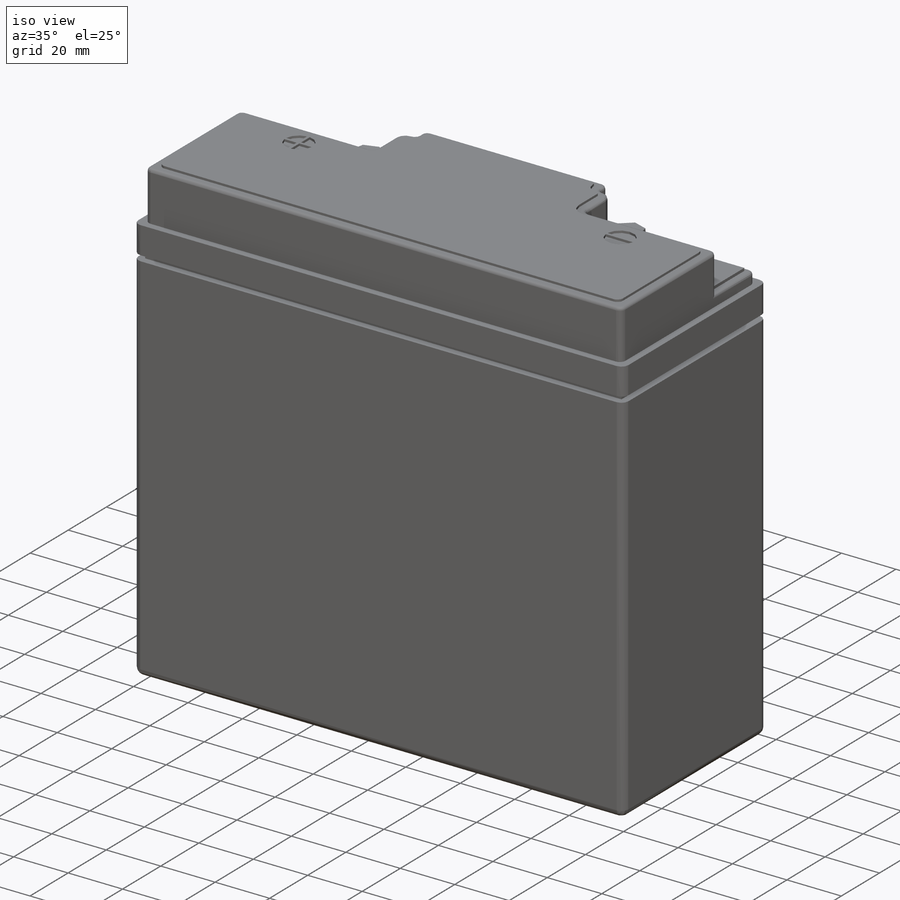
[diagram: iso view]
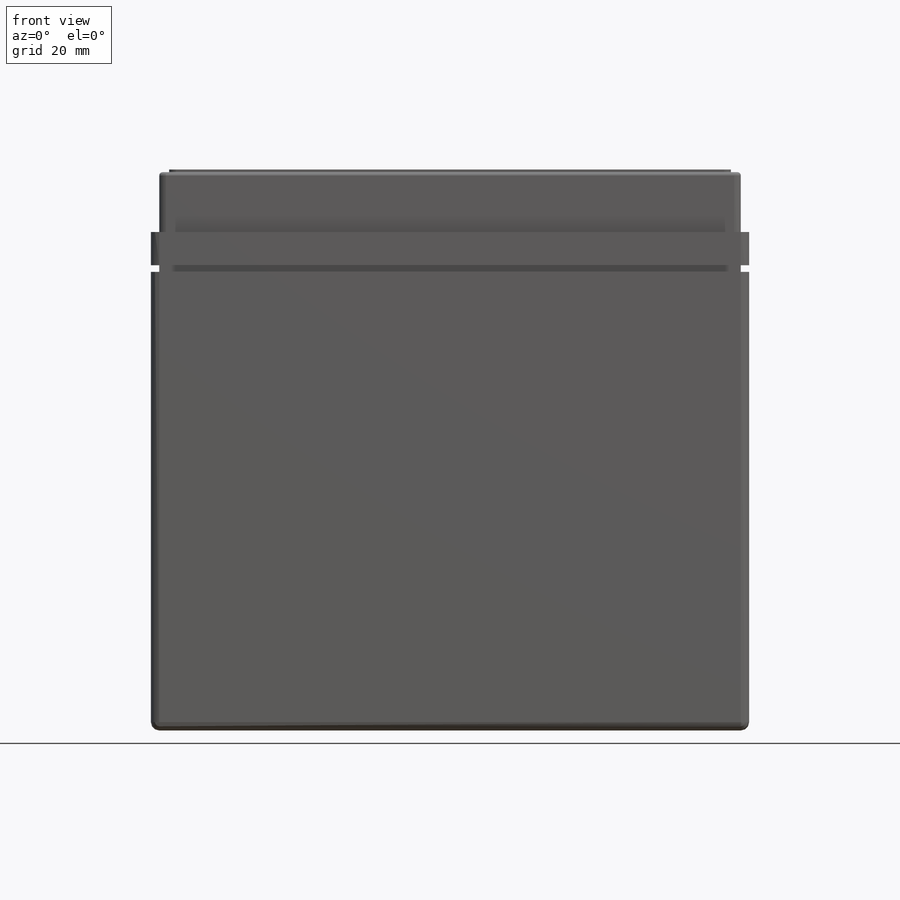
[diagram: front view]
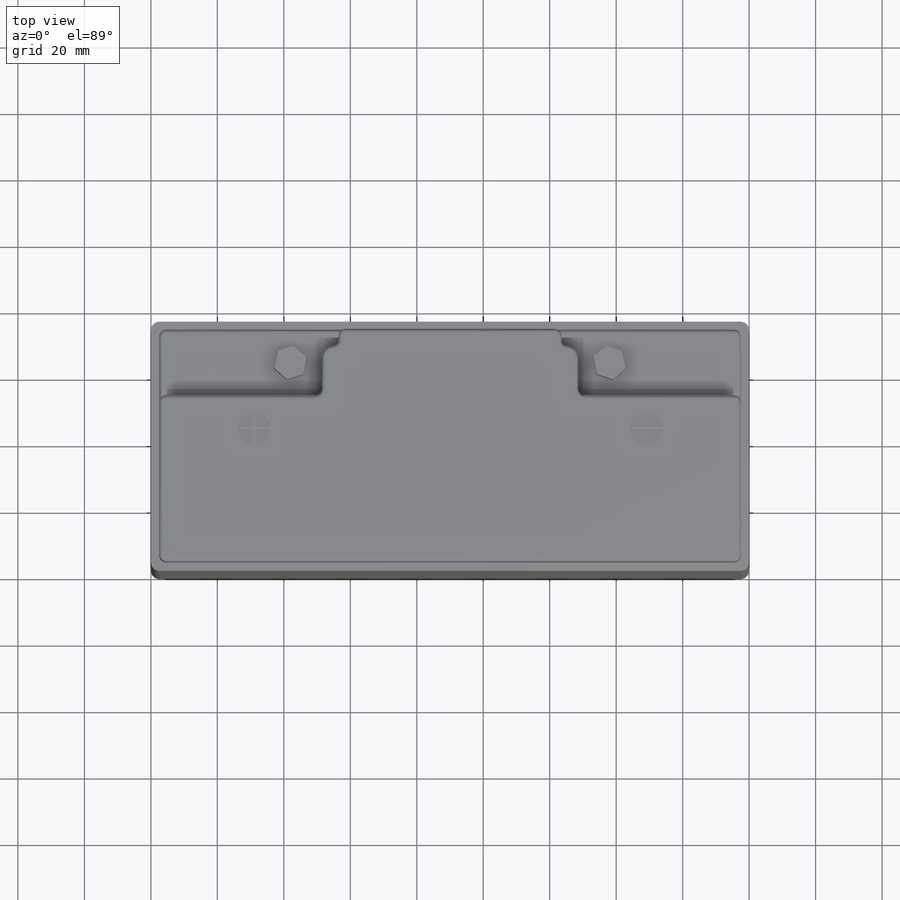
[diagram: top view]
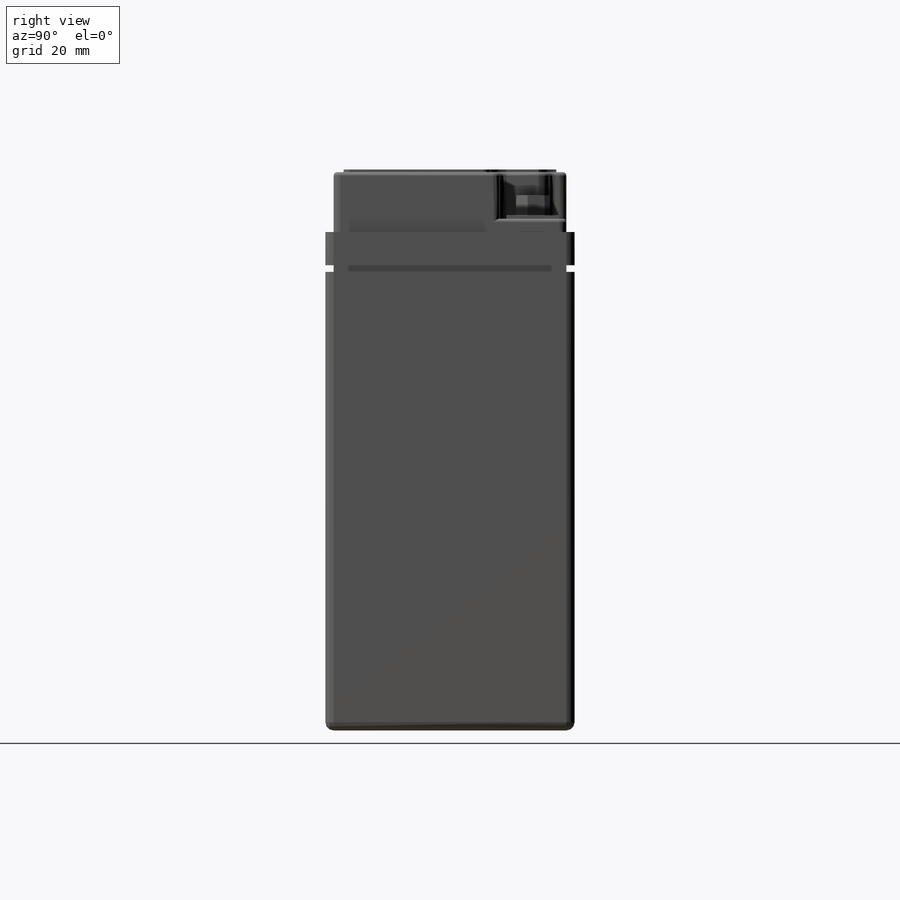
[diagram: right view]
SOLIDWORKS PART (.sldprt)
format: sldprt  version: not decoded by parser v0  size: 4,011,520 bytes
history: native  units: mm
features: sketch x9, extrude x6, fillet x4, cut_extrude x2, material x1, plane x1 (+13 scaffold rows collapsed)
feature tree (36):
  scaffold x13  (default folders/planes/origin — collapsed)
  material  "Material <not specified>"
  sketch  "Sketch1"  dims[D1=180.0mm D2=150.0mm]
  extrude  "Battery Body"  Depth=75mm
  fillet  "Battery Body Fillet"  Radius=2.5mm
  sketch  "Sketch2"  dims[c1.D3=2.0mm c1.D4=2.5mm c1.D5=2.5mm c1.D1=2.5mm c1.D2=2.5mm c2.D4=2.5mm c2.D5=2.5mm c2.D1=0.0mm c2.D2=2.5mm]
  extrude  "Battery Top"  Depth=18mm
  plane  "Plane1"  Offset=140mm
  sketch  "Sketch3"  dims[D1=2.5mm]
  cut_extrude  "Battery Body Grove"  Depth=2mm
  sketch  "Sketch4"  dims[c1.D6=2.0mm c1.D7=3.4mm c1.D8=1.5mm c1.D9=2.0mm c1.D10=2.0mm c1.D11=2.0mm c1.D12=3.4mm c1.D13=2.0mm c1.D14=3.4mm c1.D15=1.5mm c1.D2=20.0mm c1.D3=49.0mm c1.D4=15.0mm c1.D5=54.0mm c2.D12=49.0mm c2.D16=15.0mm c2.D17=54.0mm c2.D1=0.0mm]
  cut_extrude  "Terminal Cut-outs"  Depth=14mm
  fillet  "Top Fillet"  Radius=1mm
  fillet  "Terminal Fillet+"  Radius=1mm
  fillet  "Terminal Fillet-"  Radius=1mm
  sketch  "Sketch5"  dims[c1.D7=9.0mm c1.D8=9.0mm c1.D1=45.0mm c1.D2=45.0mm c1.D3=2.5mm c1.D4=2.5mm c1.D5=2.0mm c1.D6=16.0mm c2.D7=45.0mm c2.D8=8.0mm]
  extrude  "Terminal Pad+"  Depth=1mm
  sketch  "Sketch6"  dims[c1.D2=2.0mm c1.D3=10.0mm c1.D6=10.0mm c1.D7=10.0mm c2.D6=7.0mm c2.D7=25.5mm c2.D1=2.0mm c2.D4=0.5mm c2.D5=0.5mm c2.D8=0.5mm c2.D9=0.5mm]
  extrude  "Top terminal Marking"  Depth=0.8mm
  sketch  "Sketch7"  dims[c1.D5=9.0mm c1.D6=9.0mm c1.D7=9.0mm c1.D1=45.0mm c1.D2=16.0mm c1.D3=2.5mm c1.D4=2.0mm c2.D5=8.0mm c2.D7=8.0mm]
  extrude  "Terminal Pad-"  Depth=1mm
  sketch  "Sketch9"  dims[D1=~9.167188mm]
  extrude  "Terminals"  Depth=6mm
  sketch  "Yuasa-Text"
decode coverage: 20 of 21 modeling features carry decoded parameters
note: ~ marks probable driven/reference dimensions
note: suppression state not decoded; provenance and decode notes live in map.json
